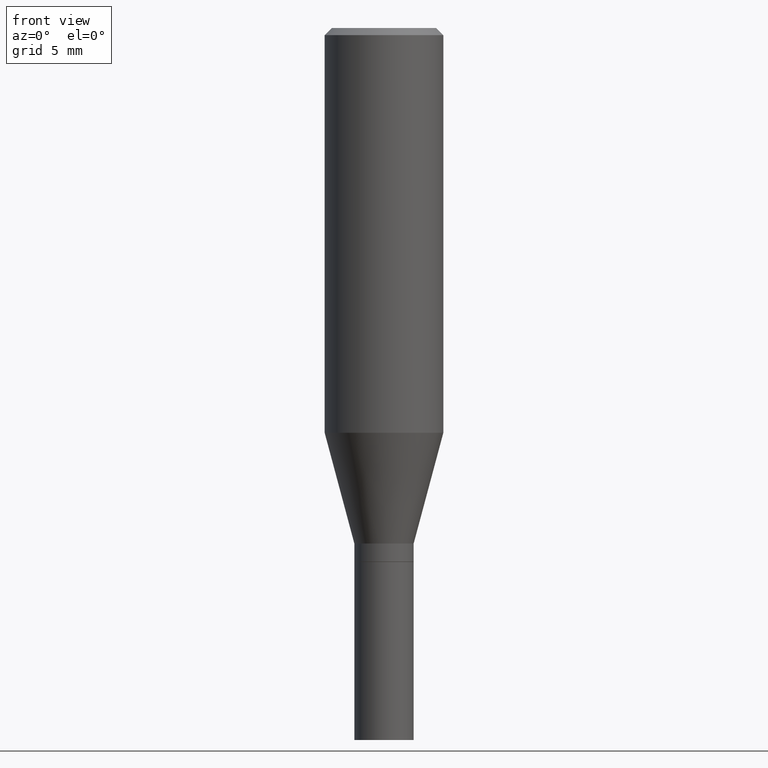
[diagram: clean part render]
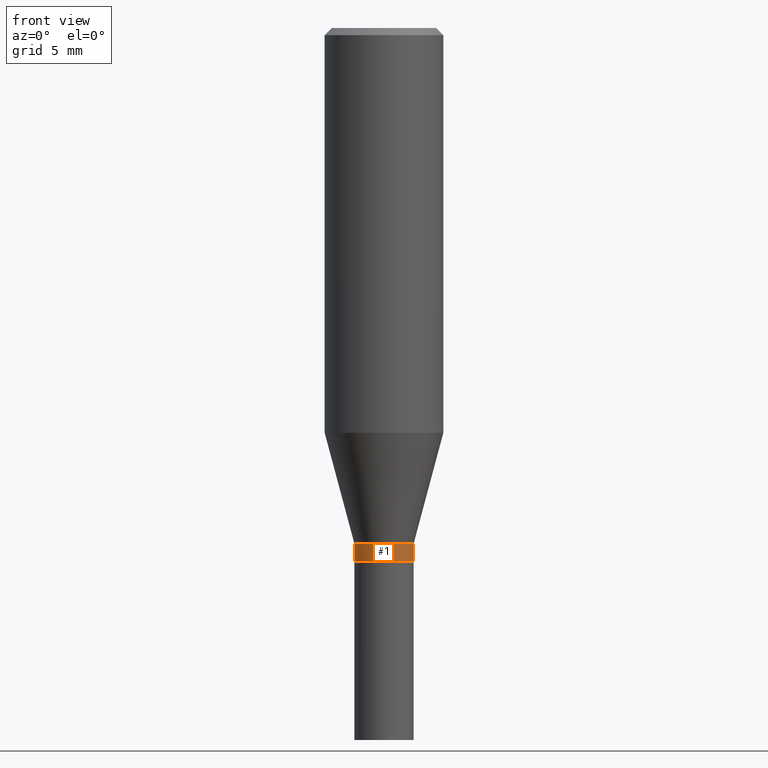
[diagram: same view with one face highlighted and labeled with its STEP entity id]
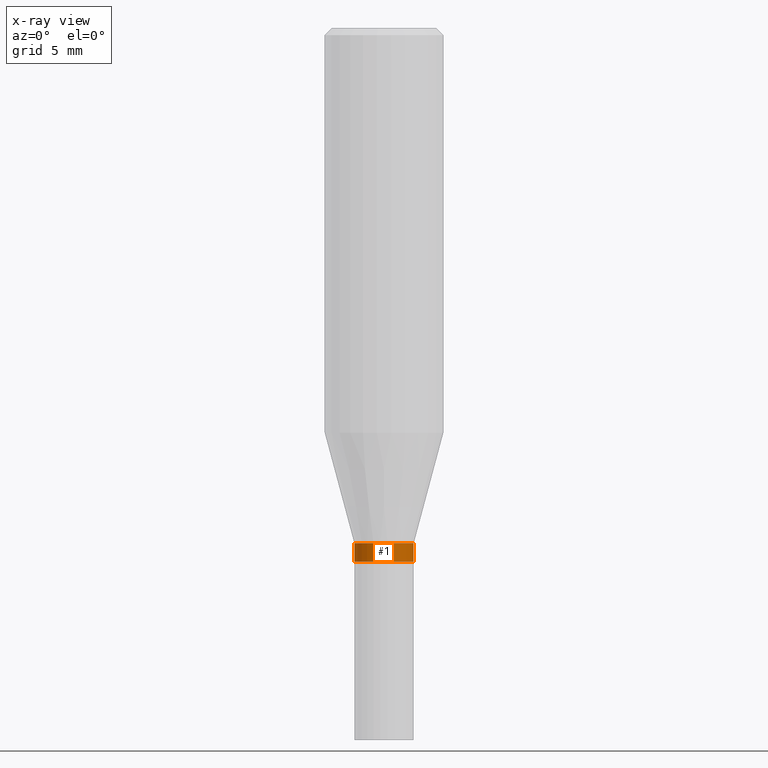
[diagram: x-ray of the same camera — body ghosted, the highlighted face saturated]
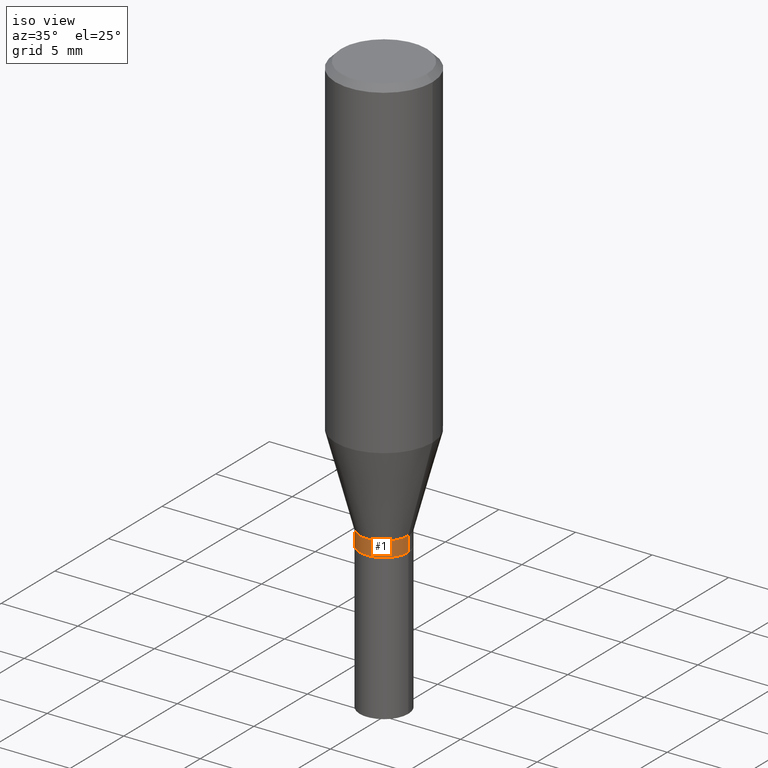
[diagram: same view with one face highlighted and labeled with its STEP entity id]
A machine part, front view. The second image highlights one B-rep face of the part: STEP entity #1.
The next image is the same camera in x-ray: the body ghosted, the highlighted face saturated — about 0% of this face is hidden behind the body in this view.
A second angle (iso view) of the same face is appended — the face is thin or edge-on in the first view.
In plain terms, the highlighted cylindrical surface (edge-blend (fillet) strip) has radius 1.5875 mm, axis along (-0, 0, 1).
Its self-contained STEP definition (entity closure, byte-faithful):
#1 = ADVANCED_FACE ( 'NONE', ( #270 ), #175, .T. ) ;
#25 = CARTESIAN_POINT ( 'NONE',  ( 2.749929672555186430E-29, -3.926170765529117721E-15, -1.124500000000000055 ) ) ;
#37 = AXIS2_PLACEMENT_3D ( 'NONE', #25, #277, #457 ) ;
#50 = EDGE_CURVE ( 'NONE', #369, #257, #133, .T. ) ;
#52 = LINE ( 'NONE', #444, #203 ) ;
#107 = DIRECTION ( 'NONE',  ( -2.445468806185136597E-29, 3.491481338843145583E-15, 1.000000000000000000 ) ) ;
#114 = VERTEX_POINT ( 'NONE', #318 ) ;
#129 = CIRCLE ( 'NONE', #37, 0.06250000000000019429 ) ;
#133 = CIRCLE ( 'NONE', #410, 0.06249999999999992367 ) ;
#159 = DIRECTION ( 'NONE',  ( -2.445468806185136877E-29, 3.491481338843145188E-15, 1.000000000000000000 ) ) ;
#174 = AXIS2_PLACEMENT_3D ( 'NONE', #393, #107, #391 ) ;
#175 = CYLINDRICAL_SURFACE ( 'NONE', #174, 0.06250000000000005551 ) ;
#178 = CARTESIAN_POINT ( 'NONE',  ( 2.655779123517058654E-29, -3.791748733983656424E-15, -1.086000000000000076 ) ) ;
#193 = EDGE_CURVE ( 'NONE', #114, #257, #372, .T. ) ;
#203 = VECTOR ( 'NONE', #259, 39.37007874015748143 ) ;
#216 = CARTESIAN_POINT ( 'NONE',  ( -0.06249999999999992367, -2.718415364513524617E-15, -1.086000000000000076 ) ) ;
#217 = ORIENTED_EDGE ( 'NONE', *, *, #193, .T. ) ;
#233 = EDGE_CURVE ( 'NONE', #430, #369, #52, .T. ) ;
#249 = EDGE_LOOP ( 'NONE', ( #446, #290, #217, #400 ) ) ;
#257 = VERTEX_POINT ( 'NONE', #309 ) ;
#259 = DIRECTION ( 'NONE',  ( -2.445468806185136877E-29, 3.491481338843145188E-15, 1.000000000000000000 ) ) ;
#270 = FACE_OUTER_BOUND ( 'NONE', #249, .T. ) ;
#273 = DIRECTION ( 'NONE',  ( -2.445468806185136597E-29, 3.491481338843145583E-15, 1.000000000000000000 ) ) ;
#276 = VECTOR ( 'NONE', #159, 39.37007874015748143 ) ;
#277 = DIRECTION ( 'NONE',  ( -2.445468806185136597E-29, 3.491481338843145583E-15, 1.000000000000000000 ) ) ;
#290 = ORIENTED_EDGE ( 'NONE', *, *, #296, .T. ) ;
#296 = EDGE_CURVE ( 'NONE', #430, #114, #129, .T. ) ;
#309 = CARTESIAN_POINT ( 'NONE',  ( 0.06249999999999992367, -4.228183901339047304E-15, -1.086000000000000076 ) ) ;
#315 = DIRECTION ( 'NONE',  ( 1.000000000000000000, -6.982962677686263555E-15, 0.000000000000000000 ) ) ;
#318 = CARTESIAN_POINT ( 'NONE',  ( 0.06250000000000019429, -4.362605932884510179E-15, -1.124500000000000055 ) ) ;
#369 = VERTEX_POINT ( 'NONE', #216 ) ;
#372 = LINE ( 'NONE', #408, #276 ) ;
#374 = CARTESIAN_POINT ( 'NONE',  ( -0.06250000000000019429, -3.482081555679053921E-15, -1.124500000000000055 ) ) ;
#391 = DIRECTION ( 'NONE',  ( 1.000000000000000000, -6.982962677686267499E-15, 4.876176775795936353E-29 ) ) ;
#393 = CARTESIAN_POINT ( 'NONE',  ( 0.000000000000000000, 0.000000000000000000, 0.000000000000000000 ) ) ;
#400 = ORIENTED_EDGE ( 'NONE', *, *, #50, .F. ) ;
#408 = CARTESIAN_POINT ( 'NONE',  ( 0.06250000000000005551, -4.364351673553921131E-16, 3.047610484872463023E-30 ) ) ;
#410 = AXIS2_PLACEMENT_3D ( 'NONE', #178, #273, #315 ) ;
#430 = VERTEX_POINT ( 'NONE', #374 ) ;
#444 = CARTESIAN_POINT ( 'NONE',  ( -0.06250000000000005551, 4.440892098500630106E-16, -3.074334431409318916E-30 ) ) ;
#446 = ORIENTED_EDGE ( 'NONE', *, *, #233, .F. ) ;
#457 = DIRECTION ( 'NONE',  ( 1.000000000000000000, -6.982962677686264344E-15, 0.000000000000000000 ) ) ;